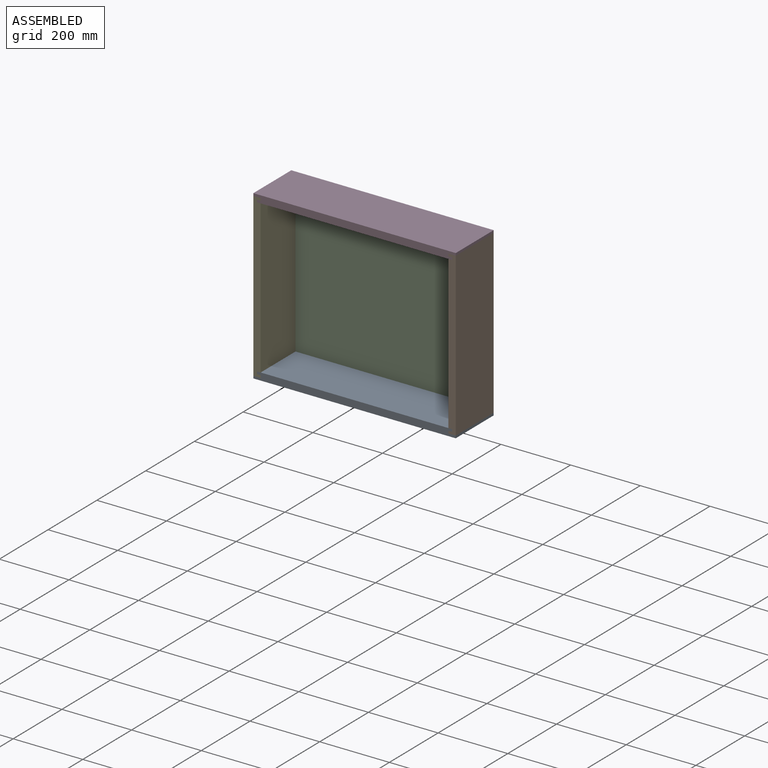
[diagram: assembled view]
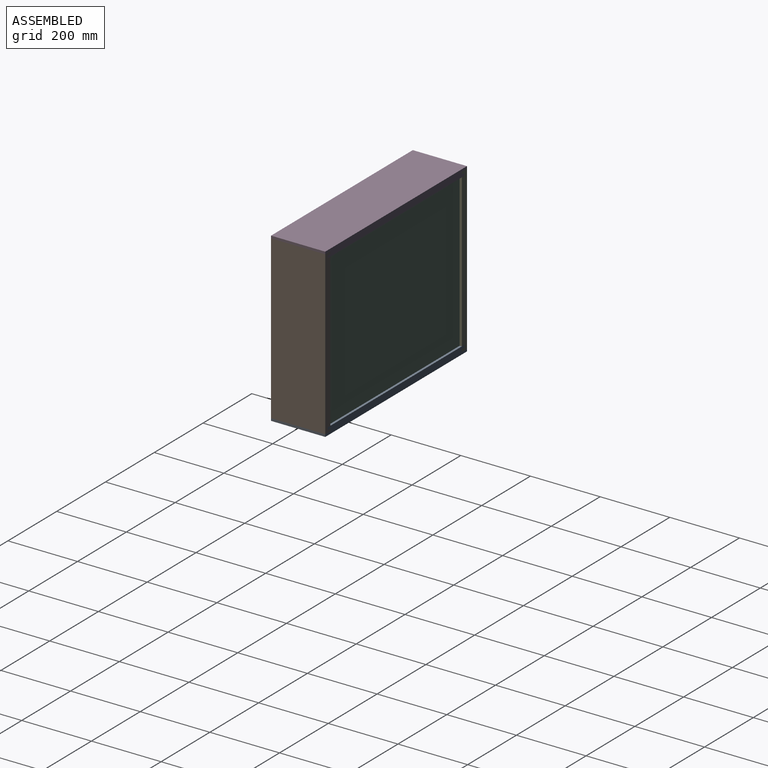
[diagram: assembled view, second angle]
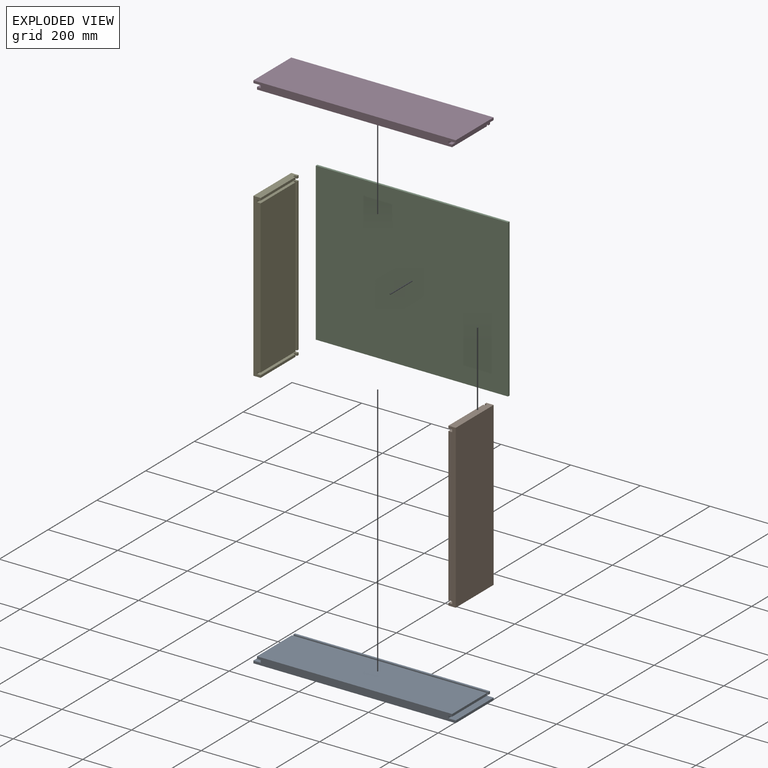
[diagram: exploded view]
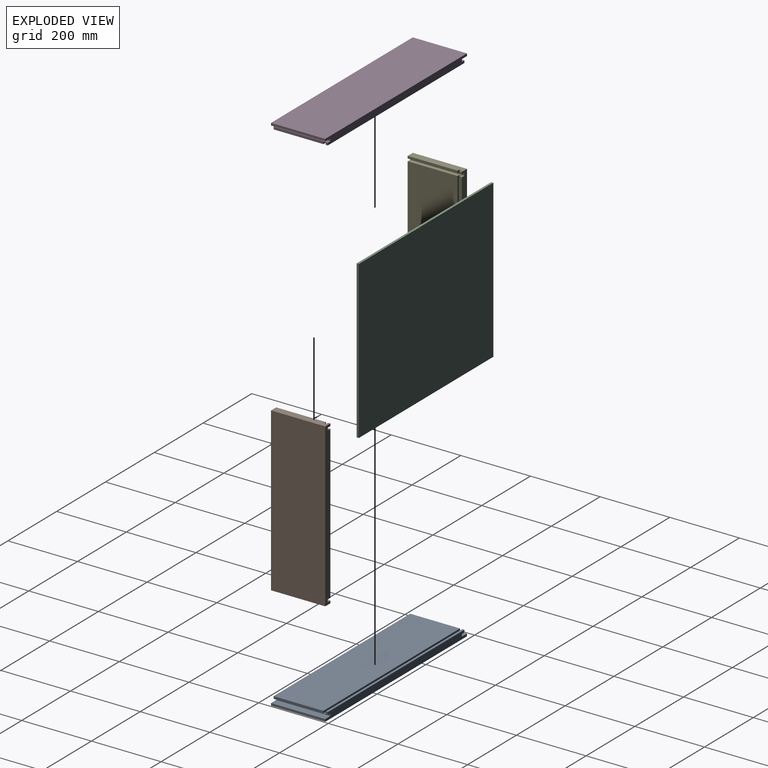
[diagram: exploded view, second angle]
ASSEMBLY  parts=5 mates=12
PART A: 18 faces, bbox 581x21x155.6 mm
  f0: plane 560.07x6.35mm, normal (0,1,0), area 3556.4mm2, adj f1,f6,f8,f16
  f1: plane 155.58x6.99mm, normal (-1,0,0), area 1046.4mm2, adj f0,f2,f4,f6,f14,f15,f16,f17
  f2: plane 560.07x142.88mm, normal (0,1,0), area 80020mm2, adj f1,f4,f8,f15
  f3: plane 155.58x6.99mm, normal (-1,0,0), area 1086.7mm2, adj f4,f6,f7,f12
  f4: plane 581.03x20.96mm, normal (0,0,-1), area 11736.3mm2, adj f1,f2,f3,f5,f7,f8,f9,f10
  f5: plane 155.58x6.99mm, normal (1,0,0), area 1086.7mm2, adj f4,f6,f7,f9
  f6: plane 581.03x20.96mm, normal (0,0,1), area 11736.3mm2, adj f0,f1,f3,f5,f7,f8,f9,f10
  f7: plane 581.03x155.58mm, normal (0,-1,0), area 90393mm2, adj f3,f4,f5,f6
  f8: plane 155.58x6.99mm, normal (1,0,0), area 1046.4mm2, adj f0,f2,f4,f6,f10,f15,f16,f17
  f9: plane 155.58x20.96mm, normal (0,1,0), area 3260.1mm2, adj f4,f5,f6,f11
  f10: plane 155.58x10.48mm, normal (0,-1,0), area 1630mm2, adj f4,f6,f8,f11
  f11: plane 155.58x6.99mm, normal (1,0,0), area 1086.7mm2, adj f4,f6,f9,f10
  f12: plane 155.58x20.96mm, normal (0,1,0), area 3260.1mm2, adj f3,f4,f6,f13
  f13: plane 155.58x6.99mm, normal (-1,0,0), area 1086.7mm2, adj f4,f6,f12,f14
  f14: plane 155.58x10.48mm, normal (0,-1,0), area 1630mm2, adj f1,f4,f6,f13
  f15: plane 560.07x6.35mm, normal (0,0,1), area 3556.4mm2, adj f1,f2,f8,f17
  f16: plane 560.07x6.35mm, normal (0,0,-1), area 3556.4mm2, adj f0,f1,f8,f17
  f17: plane 560.07x6.35mm, normal (0,1,0), area 3556.4mm2, adj f1,f8,f15,f16
PART B: 26 faces, bbox 466.7x21x155.6 mm
  f0: plane 438.79x142.88mm, normal (0,-1,0), area 62691.4mm2, adj f5,f8,f13,f20
  f1: plane 142.88x6.99mm, normal (0,-1,0), area 998mm2, adj f4,f8,f10,f23
  f2: plane 142.88x6.99mm, normal (0,-1,0), area 998mm2, adj f3,f8,f15,f17
  f3: plane 155.58x20.96mm, normal (-1,0,0), area 3219.8mm2, adj f2,f8,f9,f11,f12,f17,f18,f19
  f4: plane 155.58x10.48mm, normal (-1,0,0), area 1589.7mm2, adj f1,f7,f8,f9,f14,f23,f24,f25
  f5: plane 155.58x10.48mm, normal (-1,0,0), area 1589.7mm2, adj f0,f6,f8,f9,f16,f20,f21,f22
  f6: plane 438.79x6.35mm, normal (0,-1,0), area 2786.3mm2, adj f5,f9,f13,f21
  f7: plane 6.99x6.35mm, normal (0,-1,0), area 44.4mm2, adj f4,f9,f10,f24
  f8: plane 466.73x20.96mm, normal (0,0,1), area 9633.9mm2, adj f0,f1,f2,f3,f4,f5,f10,f12
  f9: plane 466.73x20.96mm, normal (0,0,-1), area 9633.9mm2, adj f3,f4,f5,f6,f7,f10,f11,f12
  f10: plane 155.58x20.96mm, normal (1,0,0), area 3219.8mm2, adj f1,f7,f8,f9,f12,f23,f24,f25
  f11: plane 6.99x6.35mm, normal (0,-1,0), area 44.4mm2, adj f3,f9,f15,f18
  f12: plane 466.73x155.58mm, normal (0,1,0), area 72610.7mm2, adj f3,f8,f9,f10
  f13: plane 155.58x10.48mm, normal (1,0,0), area 1589.7mm2, adj f0,f6,f8,f9,f14,f20,f21,f22
  f14: plane 155.58x6.99mm, normal (0,-1,0), area 1086.7mm2, adj f4,f8,f9,f13
  f15: plane 155.58x10.48mm, normal (1,0,0), area 1589.7mm2, adj f2,f8,f9,f11,f16,f17,f18,f19
  f16: plane 155.58x6.99mm, normal (0,-1,0), area 1086.7mm2, adj f5,f8,f9,f15
  f17: plane 6.99x6.35mm, normal (0,0,-1), area 44.4mm2, adj f2,f3,f15,f19
  f18: plane 6.99x6.35mm, normal (0,0,1), area 44.4mm2, adj f3,f11,f15,f19
  f19: plane 6.99x6.35mm, normal (0,-1,0), area 44.4mm2, adj f3,f15,f17,f18
  f20: plane 438.79x6.35mm, normal (0,0,-1), area 2786.3mm2, adj f0,f5,f13,f22
  f21: plane 438.79x6.35mm, normal (0,0,1), area 2786.3mm2, adj f5,f6,f13,f22
  f22: plane 438.79x6.35mm, normal (0,-1,0), area 2786.3mm2, adj f5,f13,f20,f21
  f23: plane 6.99x6.35mm, normal (0,0,-1), area 44.4mm2, adj f1,f4,f10,f25
  f24: plane 6.99x6.35mm, normal (0,0,1), area 44.4mm2, adj f4,f7,f10,f25
  f25: plane 6.99x6.35mm, normal (0,-1,0), area 44.4mm2, adj f4,f10,f23,f24
PART C: 6 faces, bbox 551.8x6.4x451.5 mm
  f0: plane 451.49x6.35mm, normal (-1,0,0), area 2866.9mm2, adj f1,f3,f4,f5
  f1: plane 551.82x6.35mm, normal (0,0,-1), area 3504mm2, adj f0,f2,f4,f5
  f2: plane 451.49x6.35mm, normal (1,0,0), area 2866.9mm2, adj f1,f3,f4,f5
  f3: plane 551.82x6.35mm, normal (0,0,1), area 3504mm2, adj f0,f2,f4,f5
  f4: plane 551.82x451.49mm, normal (0,-1,0), area 249136.2mm2, adj f0,f1,f2,f3
  f5: plane 551.82x451.49mm, normal (0,1,0), area 249136.2mm2, adj f0,f1,f2,f3
PART D: same geometry as A
PART E: same geometry as B
PLACE A rot(axis=(0,-0.71,-0.71),180deg) t=(217.12,247.76,354.21)mm
PLACE B rot(axis=(0.58,0.58,-0.58),120deg) t=(217.12,403.34,806.97)mm
PLACE C t=(-349.3,396.99,347.86)mm
PLACE D rot(axis=(-1,0,0),90deg) t=(-363.91,247.76,793)mm
PLACE E rot(axis=(0.58,-0.58,0.58),120deg) t=(-363.91,403.34,340.24)mm
MATE planar C.f5 <-> D.f16  axis (0,1,0) through (-73.39,396.99,573.6)mm
MATE planar E.f10 <-> D.f12  axis (0,0,1) through (-342.95,400.16,806.97)mm
MATE planar B.f3 <-> D.f9  axis (0,0,1) through (206.73,324.7,806.97)mm
MATE planar D.f5 <-> B.f12  axis (1,0,0) through (217.12,325.55,810.46)mm
MATE planar D.f6 <-> B.f9  axis (0,1,0) through (-73.39,403.34,803.56)mm
MATE planar C.f1 <-> A.f17  axis (0,0,-1) through (-73.39,393.81,347.86)mm
MATE planar D.f3 <-> E.f12  axis (-1,0,0) through (-363.91,325.55,810.46)mm
MATE planar A.f3 <-> B.f12  axis (1,0,0) through (217.12,325.55,336.75)mm
MATE planar C.f0 <-> E.f22  axis (-1,0,0) through (-349.3,393.81,573.6)mm
MATE planar A.f4 <-> B.f8  axis (0,-1,0) through (196.16,247.76,340.24)mm
MATE planar E.f9 <-> D.f6  axis (0,1,0) through (-353.51,403.34,573.6)mm
MATE planar A.f12 <-> B.f10  axis (0,0,1) through (196.16,403.34,340.24)mm
